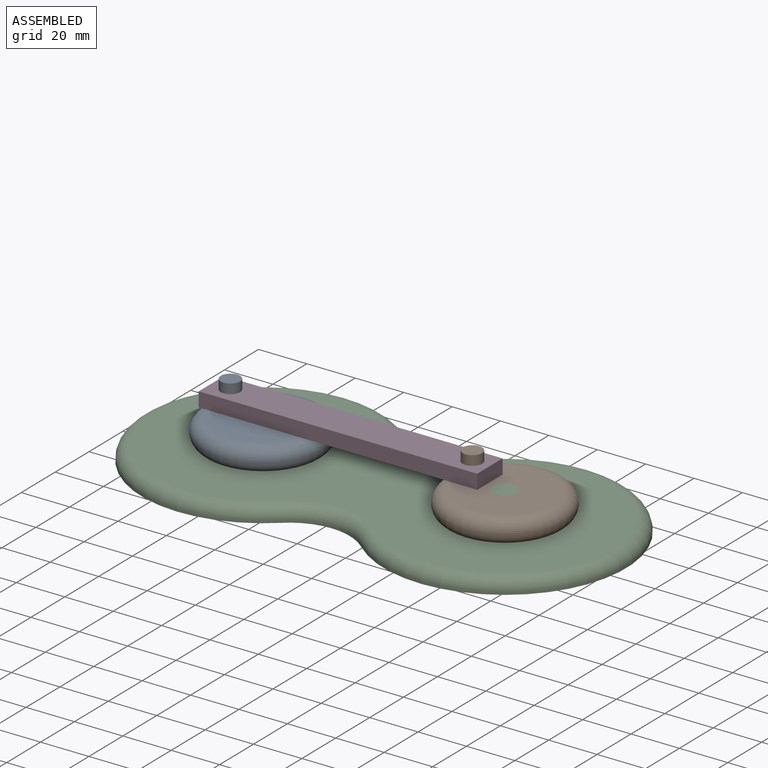
[diagram: assembled view]
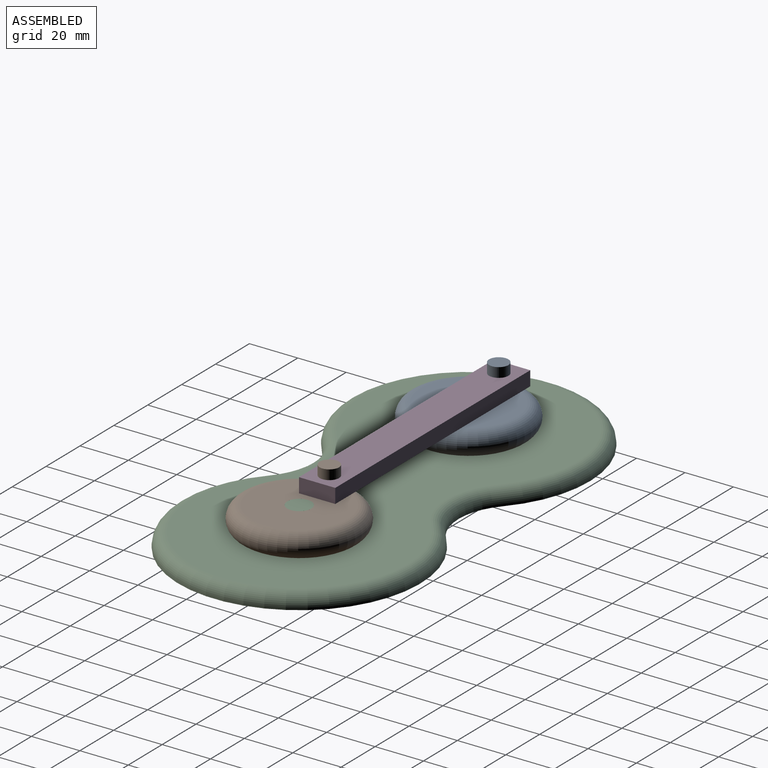
[diagram: assembled view, second angle]
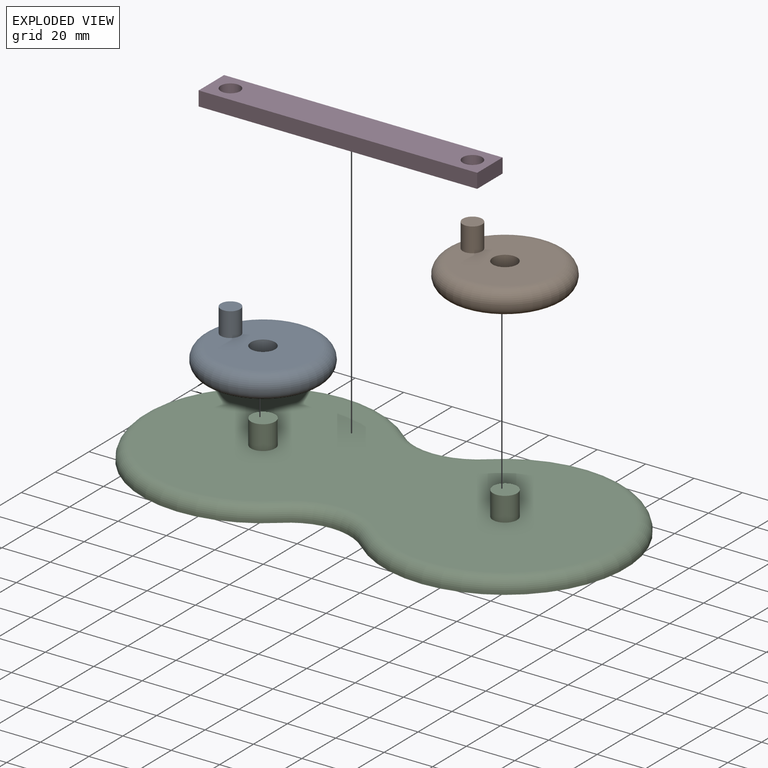
[diagram: exploded view]
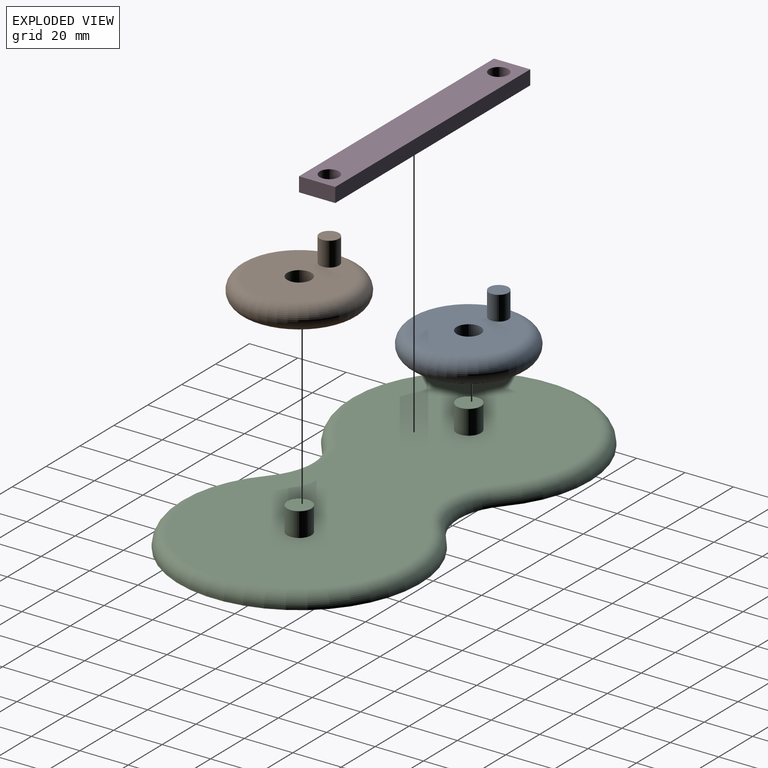
[diagram: exploded view, second angle]
ASSEMBLY  parts=4 mates=4
PART A: 6 faces, bbox 54.1x54.1x20 mm
  f0: cylinder r=5mm len=10mm, axis (0,0,-1), area 314.2mm2, adj f1,f2
  f1: plane 40x40mm, normal (0,0,1), area 1127.8mm2, adj f0,f3,f5
  f2: plane 40x40mm, normal (0,0,-1), area 1178.1mm2, adj f0,f5
  f3: cylinder r=4mm len=10mm, axis (0,0,-1), area 251.3mm2, adj f1,f4
  f4: plane 8x8mm, normal (0,0,1), area 50.3mm2, adj f3
  f5: torus R=20mm, axis (0,0,1), area 2288.1mm2, adj f1,f2
PART B: 6 faces, bbox 54.1x54.1x20 mm
  f0: cylinder r=5mm len=10mm, axis (0,0,-1), area 314.2mm2, adj f1,f2
  f1: plane 40x40mm, normal (0,0,1), area 1127.8mm2, adj f0,f3,f5
  f2: plane 40x40mm, normal (0,0,-1), area 1178.1mm2, adj f0,f5
  f3: cylinder r=4mm len=10mm, axis (0,0,-1), area 251.3mm2, adj f1,f4
  f4: plane 8x8mm, normal (0,0,1), area 50.3mm2, adj f3
  f5: torus R=20mm, axis (0,0,1), area 2288.1mm2, adj f1,f2
PART C: 14 faces, bbox 208.2x108.2x18.6 mm
  f0: cylinder r=25mm len=33.33mm, axis (0,0,-1), area 36.5mm2, adj f1,f3,f5,f12
  f1: cylinder r=50mm len=100mm, axis (0,0,-1), area 230.1mm2, adj f0,f2,f5,f10
  f2: cylinder r=25mm len=33.33mm, axis (0,0,-1), area 36.5mm2, adj f1,f3,f5,f11
  f3: cylinder r=50mm len=100mm, axis (0,0,-1), area 230.1mm2, adj f0,f2,f5,f13
  f4: plane 190x90mm, normal (0,0,1), area 13436.7mm2, adj f6,f8,f10,f11,f12,f13
  f5: plane 200x100mm, normal (0,0,-1), area 16180.6mm2, adj f0,f1,f2,f3
  f6: cylinder r=5mm len=10mm, axis (0,0,-1), area 314.2mm2, adj f4,f7
  f7: plane 10x10mm, normal (0,0,1), area 78.5mm2, adj f6
  f8: cylinder r=5mm len=10mm, axis (0,0,-1), area 314.2mm2, adj f4,f9
  f9: plane 10x10mm, normal (0,0,1), area 78.5mm2, adj f8
  f10: torus R=45mm, axis (0,0,1), area 1741.2mm2, adj f1,f4,f11,f12
  f11: torus R=30mm, axis (0,0,1), area 307.4mm2, adj f2,f4,f10,f13
  f12: torus R=30mm, axis (0,0,1), area 307.4mm2, adj f0,f4,f10,f13
  f13: torus R=45mm, axis (0,0,1), area 1741.2mm2, adj f3,f4,f11,f12
PART D: 8 faces, bbox 115.1x15x6 mm
  f0: plane 115.09x6mm, normal (0,1,0), area 690.5mm2, adj f1,f5,f6,f7
  f1: plane 15x6mm, normal (-1,0,0), area 90mm2, adj f0,f2,f6,f7
  f2: plane 115.09x6mm, normal (0,-1,0), area 690.5mm2, adj f1,f5,f6,f7
  f3: cylinder r=4mm len=8mm, axis (0,0,-1), area 150.8mm2, adj f6,f7
  f4: cylinder r=4mm len=8mm, axis (0,0,-1), area 150.8mm2, adj f6,f7
  f5: plane 15x6mm, normal (1,0,0), area 90mm2, adj f0,f2,f6,f7
  f6: plane 115.09x15mm, normal (0,0,1), area 1625.8mm2, adj f0,f1,f2,f3,f4,f5
  f7: plane 115.09x15mm, normal (0,0,-1), area 1625.8mm2, adj f0,f1,f2,f3,f4,f5
PLACE A rot(axis=(0,0,-1),7.7deg) t=(-21.58,33.58,12.76)mm
PLACE B rot(axis=(0,0,-1),7.7deg) t=(-20.67,47,12.76)mm
PLACE C t=(-21.58,33.58,12.76)mm fixed
PLACE D t=(-21.44,35.6,12.76)mm
MATE revolute A.f0 <-> C.f6  axis (0,0,-1) through (-21.58,33.58,18.76)mm
MATE revolute D.f3 <-> A.f3  axis (0,0,-1) through (-36.44,35.6,28.76)mm
MATE revolute B.f0 <-> C.f8  axis (0,0,-1) through (78.42,33.58,18.76)mm
MATE revolute D.f4 <-> B.f3  axis (0,0,-1) through (63.56,35.6,28.76)mm
